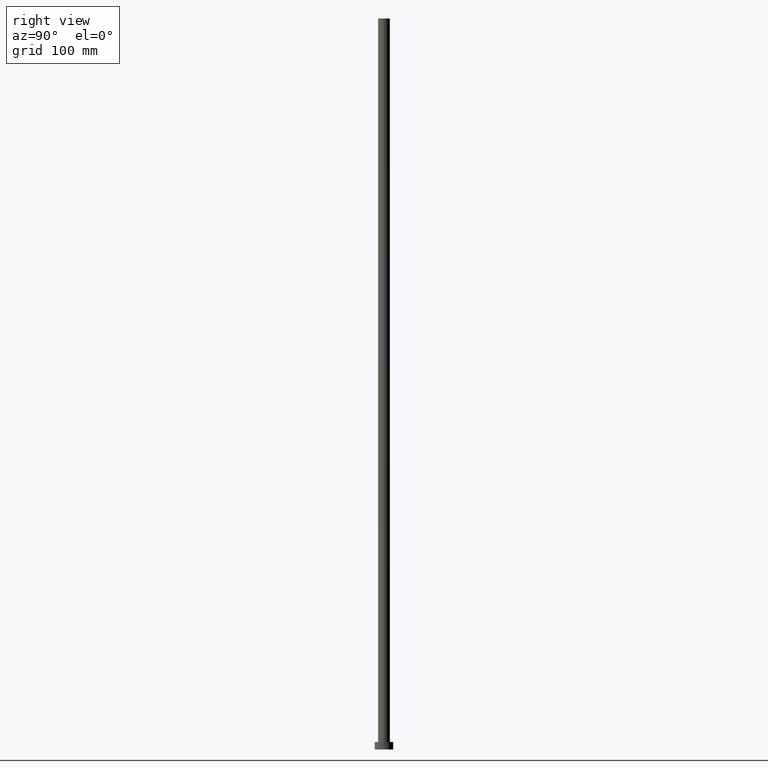
[diagram: clean part render]
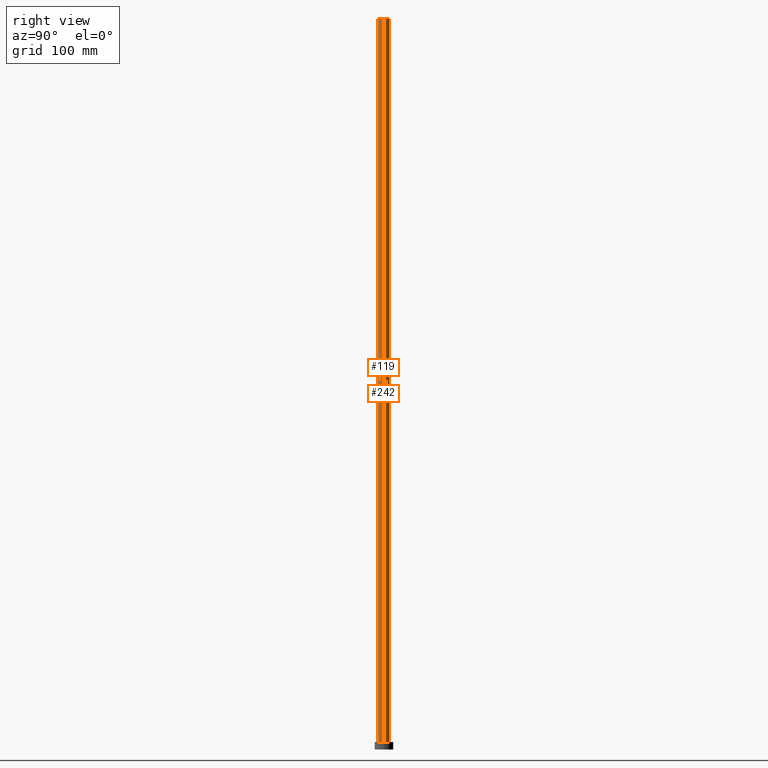
[diagram: same view with one multi-face feature highlighted, each face labeled with its STEP entity id]
A machine part, right view. The highlighted faces form ONE feature: a constant-radius fillet chain: 2 tangent blend faces with common blend radius 5.1 mm. The faces share edges in the B-rep.
Their STEP definitions:
[1] entity #119 (Cylinder):
#3 = EDGE_CURVE ( 'NONE', #17, #167, #249, .T. ) ;
#14 = AXIS2_PLACEMENT_3D ( 'NONE', #58, #205, #149 ) ;
#17 = VERTEX_POINT ( 'NONE', #42 ) ;
#21 = LINE ( 'NONE', #121, #103 ) ;
#23 = CARTESIAN_POINT ( 'NONE',  ( 0.000000000000000000, 0.000000000000000000, 630.0000000000000000 ) ) ;
#29 = ORIENTED_EDGE ( 'NONE', *, *, #96, .T. ) ;
#42 = CARTESIAN_POINT ( 'NONE',  ( 5.100000000000001421, 6.245698675651501825E-16, 630.0000000000000000 ) ) ;
#47 = FACE_OUTER_BOUND ( 'NONE', #104, .T. ) ;
#51 = ORIENTED_EDGE ( 'NONE', *, *, #56, .T. ) ;
#56 = EDGE_CURVE ( 'NONE', #126, #167, #142, .T. ) ;
#58 = CARTESIAN_POINT ( 'NONE',  ( 0.000000000000000000, 0.000000000000000000, 630.0000000000000000 ) ) ;
#77 = ORIENTED_EDGE ( 'NONE', *, *, #254, .F. ) ;
#85 = DIRECTION ( 'NONE',  ( 1.000000000000000000, 0.000000000000000000, 0.000000000000000000 ) ) ;
#95 = CARTESIAN_POINT ( 'NONE',  ( -5.100000000000001421, 0.000000000000000000, 630.0000000000000000 ) ) ;
#96 = EDGE_CURVE ( 'NONE', #214, #126, #21, .T. ) ;
#99 = DIRECTION ( 'NONE',  ( -0.000000000000000000, -0.000000000000000000, -1.000000000000000000 ) ) ;
#103 = VECTOR ( 'NONE', #183, 1000.000000000000000 ) ;
#104 = EDGE_LOOP ( 'NONE', ( #107, #77, #29, #51 ) ) ;
#107 = ORIENTED_EDGE ( 'NONE', *, *, #3, .F. ) ;
#108 = CARTESIAN_POINT ( 'NONE',  ( -5.100000000000001421, 0.000000000000000000, 6.500000000000000000 ) ) ;
#115 = CARTESIAN_POINT ( 'NONE',  ( 0.000000000000000000, 0.000000000000000000, 6.500000000000000000 ) ) ;
#119 = ADVANCED_FACE ( 'NONE', ( #47 ), #202, .T. ) ;
#121 = CARTESIAN_POINT ( 'NONE',  ( -5.100000000000001421, 0.000000000000000000, 630.0000000000000000 ) ) ;
#125 = AXIS2_PLACEMENT_3D ( 'NONE', #23, #99, #166 ) ;
#126 = VERTEX_POINT ( 'NONE', #108 ) ;
#132 = AXIS2_PLACEMENT_3D ( 'NONE', #115, #181, #85 ) ;
#142 = CIRCLE ( 'NONE', #132, 5.100000000000001421 ) ;
#149 = DIRECTION ( 'NONE',  ( 1.000000000000000000, 0.000000000000000000, 0.000000000000000000 ) ) ;
#153 = DIRECTION ( 'NONE',  ( -0.000000000000000000, -0.000000000000000000, -1.000000000000000000 ) ) ;
#166 = DIRECTION ( 'NONE',  ( -1.000000000000000000, 0.000000000000000000, 0.000000000000000000 ) ) ;
#167 = VERTEX_POINT ( 'NONE', #190 ) ;
#170 = CIRCLE ( 'NONE', #14, 5.100000000000001421 ) ;
#181 = DIRECTION ( 'NONE',  ( 0.000000000000000000, 0.000000000000000000, 1.000000000000000000 ) ) ;
#183 = DIRECTION ( 'NONE',  ( -0.000000000000000000, -0.000000000000000000, -1.000000000000000000 ) ) ;
#185 = VECTOR ( 'NONE', #153, 1000.000000000000000 ) ;
#190 = CARTESIAN_POINT ( 'NONE',  ( 5.100000000000001421, 6.245698675651501825E-16, 6.500000000000000000 ) ) ;
#202 = CYLINDRICAL_SURFACE ( 'NONE', #125, 5.100000000000001421 ) ;
#205 = DIRECTION ( 'NONE',  ( 0.000000000000000000, 0.000000000000000000, 1.000000000000000000 ) ) ;
#214 = VERTEX_POINT ( 'NONE', #95 ) ;
#249 = LINE ( 'NONE', #252, #185 ) ;
#252 = CARTESIAN_POINT ( 'NONE',  ( 5.100000000000001421, 6.245698675651501825E-16, 630.0000000000000000 ) ) ;
#254 = EDGE_CURVE ( 'NONE', #214, #17, #170, .T. ) ;
[2] entity #242 (Cylinder):
#3 = EDGE_CURVE ( 'NONE', #17, #167, #249, .T. ) ;
#17 = VERTEX_POINT ( 'NONE', #42 ) ;
#20 = DIRECTION ( 'NONE',  ( 1.000000000000000000, 0.000000000000000000, 0.000000000000000000 ) ) ;
#21 = LINE ( 'NONE', #121, #103 ) ;
#42 = CARTESIAN_POINT ( 'NONE',  ( 5.100000000000001421, 6.245698675651501825E-16, 630.0000000000000000 ) ) ;
#48 = AXIS2_PLACEMENT_3D ( 'NONE', #198, #68, #20 ) ;
#61 = DIRECTION ( 'NONE',  ( 0.000000000000000000, 0.000000000000000000, 1.000000000000000000 ) ) ;
#68 = DIRECTION ( 'NONE',  ( 0.000000000000000000, 0.000000000000000000, 1.000000000000000000 ) ) ;
#72 = EDGE_CURVE ( 'NONE', #167, #126, #178, .T. ) ;
#82 = CARTESIAN_POINT ( 'NONE',  ( 0.000000000000000000, 0.000000000000000000, 630.0000000000000000 ) ) ;
#88 = EDGE_LOOP ( 'NONE', ( #197, #218, #232, #171 ) ) ;
#91 = CARTESIAN_POINT ( 'NONE',  ( 0.000000000000000000, 0.000000000000000000, 630.0000000000000000 ) ) ;
#93 = AXIS2_PLACEMENT_3D ( 'NONE', #82, #61, #216 ) ;
#95 = CARTESIAN_POINT ( 'NONE',  ( -5.100000000000001421, 0.000000000000000000, 630.0000000000000000 ) ) ;
#96 = EDGE_CURVE ( 'NONE', #214, #126, #21, .T. ) ;
#103 = VECTOR ( 'NONE', #183, 1000.000000000000000 ) ;
#108 = CARTESIAN_POINT ( 'NONE',  ( -5.100000000000001421, 0.000000000000000000, 6.500000000000000000 ) ) ;
#121 = CARTESIAN_POINT ( 'NONE',  ( -5.100000000000001421, 0.000000000000000000, 630.0000000000000000 ) ) ;
#126 = VERTEX_POINT ( 'NONE', #108 ) ;
#140 = AXIS2_PLACEMENT_3D ( 'NONE', #91, #248, #151 ) ;
#151 = DIRECTION ( 'NONE',  ( -1.000000000000000000, 0.000000000000000000, 0.000000000000000000 ) ) ;
#153 = DIRECTION ( 'NONE',  ( -0.000000000000000000, -0.000000000000000000, -1.000000000000000000 ) ) ;
#167 = VERTEX_POINT ( 'NONE', #190 ) ;
#171 = ORIENTED_EDGE ( 'NONE', *, *, #96, .F. ) ;
#178 = CIRCLE ( 'NONE', #48, 5.100000000000001421 ) ;
#183 = DIRECTION ( 'NONE',  ( -0.000000000000000000, -0.000000000000000000, -1.000000000000000000 ) ) ;
#185 = VECTOR ( 'NONE', #153, 1000.000000000000000 ) ;
#190 = CARTESIAN_POINT ( 'NONE',  ( 5.100000000000001421, 6.245698675651501825E-16, 6.500000000000000000 ) ) ;
#191 = CIRCLE ( 'NONE', #93, 5.100000000000001421 ) ;
#196 = FACE_OUTER_BOUND ( 'NONE', #88, .T. ) ;
#197 = ORIENTED_EDGE ( 'NONE', *, *, #215, .F. ) ;
#198 = CARTESIAN_POINT ( 'NONE',  ( 0.000000000000000000, 0.000000000000000000, 6.500000000000000000 ) ) ;
#214 = VERTEX_POINT ( 'NONE', #95 ) ;
#215 = EDGE_CURVE ( 'NONE', #17, #214, #191, .T. ) ;
#216 = DIRECTION ( 'NONE',  ( 1.000000000000000000, 0.000000000000000000, 0.000000000000000000 ) ) ;
#218 = ORIENTED_EDGE ( 'NONE', *, *, #3, .T. ) ;
#232 = ORIENTED_EDGE ( 'NONE', *, *, #72, .T. ) ;
#236 = CYLINDRICAL_SURFACE ( 'NONE', #140, 5.100000000000001421 ) ;
#242 = ADVANCED_FACE ( 'NONE', ( #196 ), #236, .T. ) ;
#248 = DIRECTION ( 'NONE',  ( -0.000000000000000000, -0.000000000000000000, -1.000000000000000000 ) ) ;
#249 = LINE ( 'NONE', #252, #185 ) ;
#252 = CARTESIAN_POINT ( 'NONE',  ( 5.100000000000001421, 6.245698675651501825E-16, 630.0000000000000000 ) ) ;